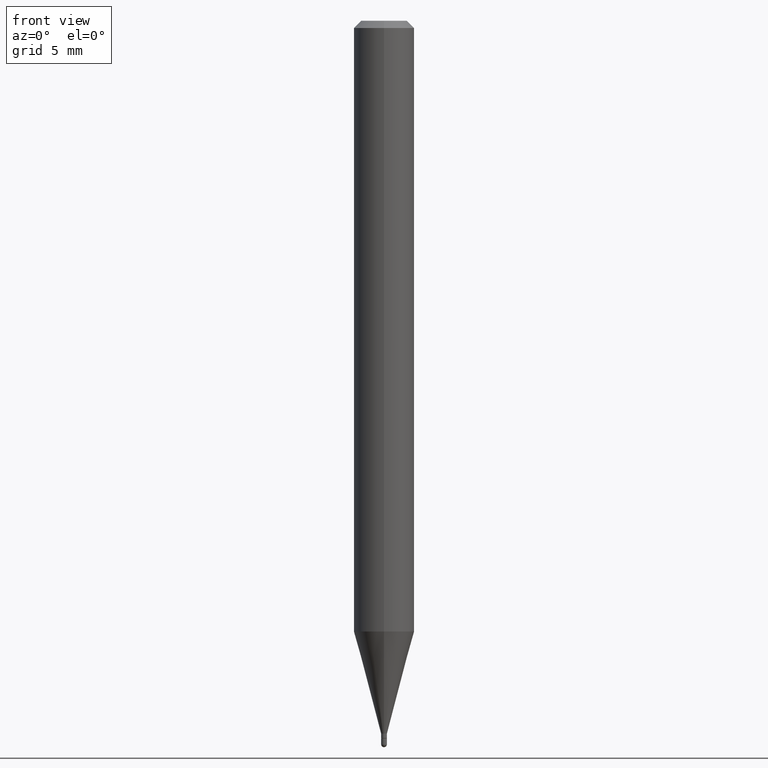
[diagram: clean part render]
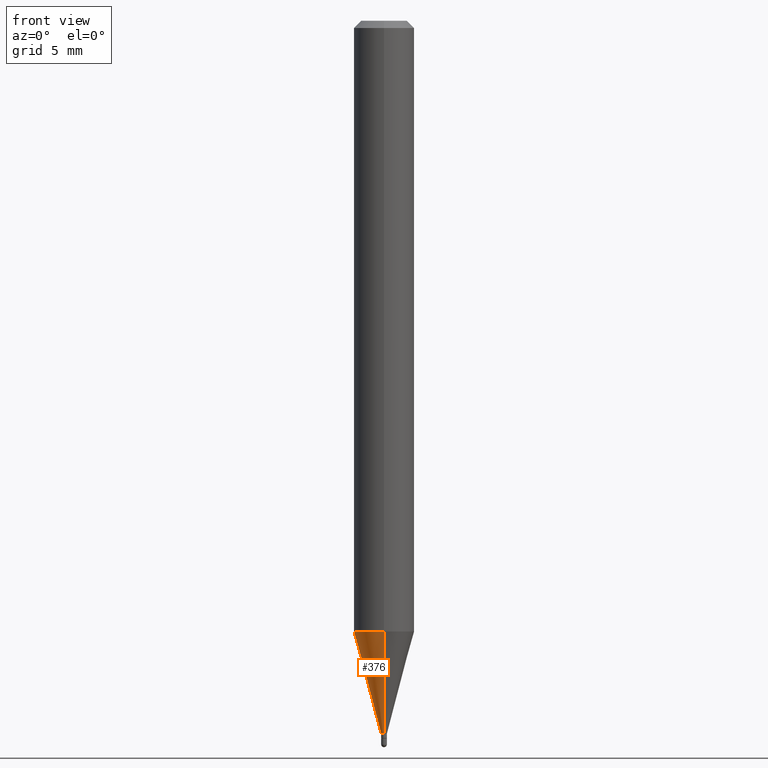
[diagram: same view with one face highlighted and labeled with its STEP entity id]
A machine part, front view. The second image highlights one B-rep face of the part: STEP entity #376.
In plain terms, the highlighted conical surface has half-angle 15 deg.
Its self-contained STEP definition (entity closure, byte-faithful):
#10 = CARTESIAN_POINT ( 'NONE',  ( -4.189777606608105530E-17, -0.006000000000005062048, -1.471999999999999975 ) ) ;
#14 = AXIS2_PLACEMENT_3D ( 'NONE', #51, #206, #147 ) ;
#16 = EDGE_CURVE ( 'NONE', #353, #105, #60, .T. ) ;
#18 = CARTESIAN_POINT ( 'NONE',  ( 2.433608869978675634E-16, 0.005999999999994782944, -1.471999999999999975 ) ) ;
#20 = DIRECTION ( 'NONE',  ( -1.807323732225329745E-15, -0.2588190451025181305, 0.9659258262890689783 ) ) ;
#47 = AXIS2_PLACEMENT_3D ( 'NONE', #181, #363, #374 ) ;
#51 = CARTESIAN_POINT ( 'NONE',  ( 3.599751076660597576E-29, -5.139430466237107339E-15, -1.471999999999999975 ) ) ;
#52 = ORIENTED_EDGE ( 'NONE', *, *, #415, .T. ) ;
#60 = LINE ( 'NONE', #336, #302 ) ;
#61 = DIRECTION ( 'NONE',  ( 1.839019923739599921E-15, 0.2588190451025249028, 0.9659258262890670910 ) ) ;
#95 = AXIS2_PLACEMENT_3D ( 'NONE', #170, #325, #390 ) ;
#104 = FACE_OUTER_BOUND ( 'NONE', #142, .T. ) ;
#105 = VERTEX_POINT ( 'NONE', #486 ) ;
#138 = CIRCLE ( 'NONE', #47, 0.005999999999999922930 ) ;
#142 = EDGE_LOOP ( 'NONE', ( #284, #496, #52, #457 ) ) ;
#147 = DIRECTION ( 'NONE',  ( -6.982962677686265922E-15, -1.000000000000000000, 0.000000000000000000 ) ) ;
#170 = CARTESIAN_POINT ( 'NONE',  ( 3.084094387756085363E-29, -4.403217978029919440E-15, -1.261139129372358836 ) ) ;
#181 = CARTESIAN_POINT ( 'NONE',  ( 3.599751076660597576E-29, -5.139430466237107339E-15, -1.471999999999999975 ) ) ;
#184 = CIRCLE ( 'NONE', #95, 0.06250000000000000000 ) ;
#206 = DIRECTION ( 'NONE',  ( -2.445483068383558096E-29, 3.491460914563251865E-15, 1.000000000000000000 ) ) ;
#226 = VECTOR ( 'NONE', #20, 39.37007874015748143 ) ;
#271 = LINE ( 'NONE', #407, #226 ) ;
#284 = ORIENTED_EDGE ( 'NONE', *, *, #16, .F. ) ;
#302 = VECTOR ( 'NONE', #61, 39.37007874015748143 ) ;
#325 = DIRECTION ( 'NONE',  ( -2.445483068383558096E-29, 3.491460914563251865E-15, 1.000000000000000000 ) ) ;
#334 = CONICAL_SURFACE ( 'NONE', #14, 0.005999999999999922930, 0.2617993877991502405 ) ;
#336 = CARTESIAN_POINT ( 'NONE',  ( 4.263256414564145531E-17, 0.005999999999994783811, -1.471999999999999975 ) ) ;
#344 = EDGE_CURVE ( 'NONE', #353, #463, #138, .T. ) ;
#353 = VERTEX_POINT ( 'NONE', #18 ) ;
#363 = DIRECTION ( 'NONE',  ( -2.445483068383558096E-29, 3.491460914563251865E-15, 1.000000000000000000 ) ) ;
#374 = DIRECTION ( 'NONE',  ( -6.982962677686265922E-15, -1.000000000000000000, 0.000000000000000000 ) ) ;
#376 = ADVANCED_FACE ( 'NONE', ( #104 ), #334, .T. ) ;
#390 = DIRECTION ( 'NONE',  ( -6.982962677686265922E-15, -1.000000000000000000, 4.370956789862821150E-15 ) ) ;
#407 = CARTESIAN_POINT ( 'NONE',  ( -4.189777606608105530E-17, -0.006000000000005062048, -1.471999999999999975 ) ) ;
#411 = CARTESIAN_POINT ( 'NONE',  ( -4.364351673553608052E-16, -0.06250000000000439926, -1.261139129372358614 ) ) ;
#415 = EDGE_CURVE ( 'NONE', #463, #429, #271, .T. ) ;
#429 = VERTEX_POINT ( 'NONE', #411 ) ;
#457 = ORIENTED_EDGE ( 'NONE', *, *, #464, .F. ) ;
#463 = VERTEX_POINT ( 'NONE', #10 ) ;
#464 = EDGE_CURVE ( 'NONE', #105, #429, #184, .T. ) ;
#486 = CARTESIAN_POINT ( 'NONE',  ( 4.440892098500932831E-16, 0.06249999999999558686, -1.261139129372359058 ) ) ;
#496 = ORIENTED_EDGE ( 'NONE', *, *, #344, .T. ) ;